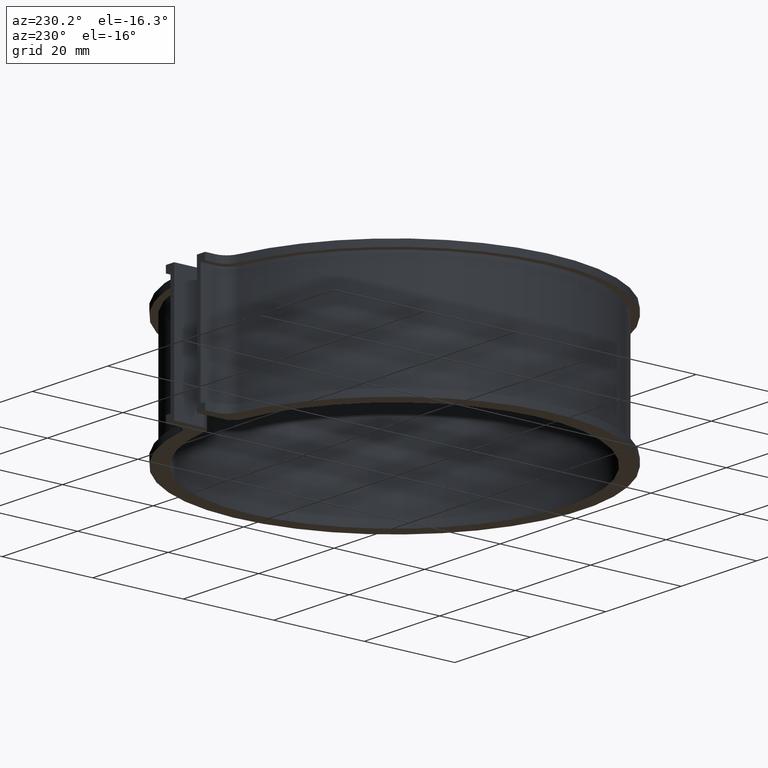
[diagram: clean part render]
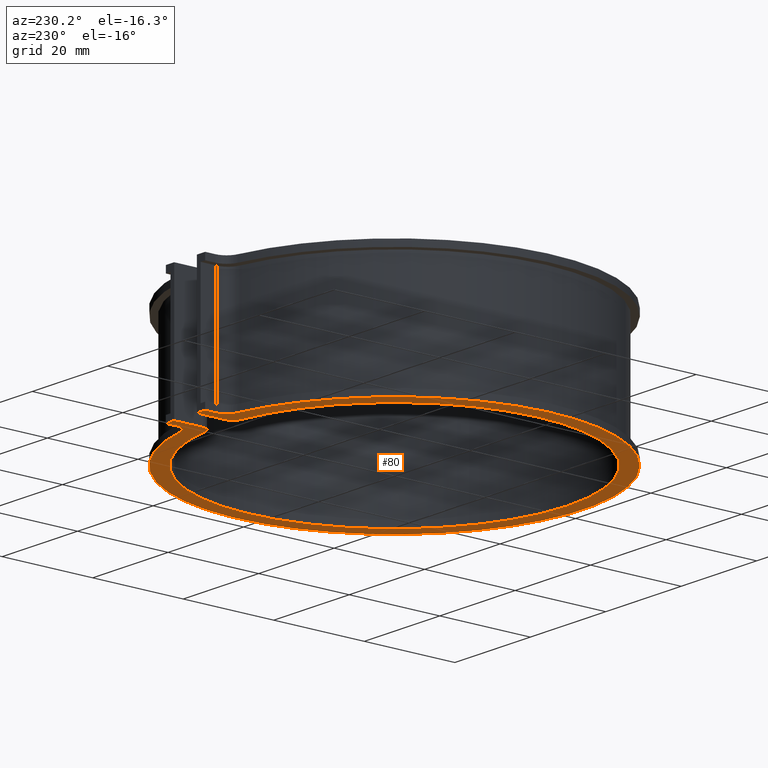
[diagram: same view with one face highlighted and labeled with its STEP entity id]
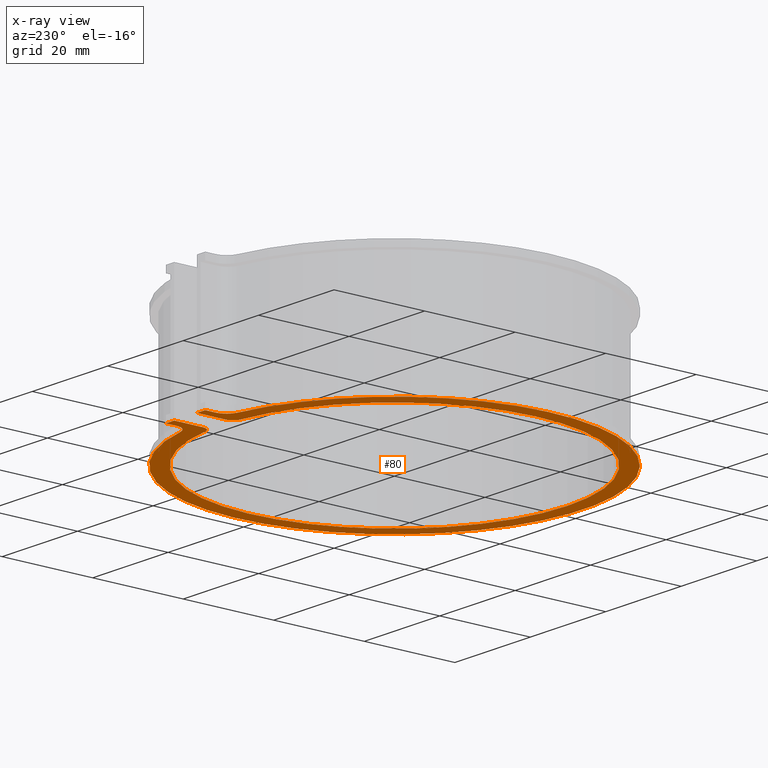
[diagram: x-ray of the same camera — body ghosted, the highlighted face saturated]
A machine part, auxiliary view. The second image highlights one B-rep face of the part: STEP entity #80.
The next image is the same camera in x-ray: the body ghosted, the highlighted face saturated — about 0% of this face is hidden behind the body in this view.
In plain terms, the highlighted planar face has unit normal (0, 0, -1).
Its self-contained STEP definition (entity closure, byte-faithful):
#80 = ADVANCED_FACE( '', ( #112 ), #113, .T. );
#112 = FACE_OUTER_BOUND( '', #164, .T. );
#113 = PLANE( '', #165 );
#164 = EDGE_LOOP( '', ( #253, #254, #255, #256, #257, #258, #259, #260, #261, #262, #263, #264 ) );
#165 = AXIS2_PLACEMENT_3D( '', #265, #266, #267 );
#253 = ORIENTED_EDGE( '', *, *, #455, .F. );
#254 = ORIENTED_EDGE( '', *, *, #456, .T. );
#255 = ORIENTED_EDGE( '', *, *, #432, .F. );
#256 = ORIENTED_EDGE( '', *, *, #457, .T. );
#257 = ORIENTED_EDGE( '', *, *, #458, .F. );
#258 = ORIENTED_EDGE( '', *, *, #459, .F. );
#259 = ORIENTED_EDGE( '', *, *, #460, .F. );
#260 = ORIENTED_EDGE( '', *, *, #461, .F. );
#261 = ORIENTED_EDGE( '', *, *, #462, .F. );
#262 = ORIENTED_EDGE( '', *, *, #463, .F. );
#263 = ORIENTED_EDGE( '', *, *, #444, .F. );
#264 = ORIENTED_EDGE( '', *, *, #438, .F. );
#265 = CARTESIAN_POINT( '', ( 0.000000000000000, 0.000000000000000, -14.0000000000000 ) );
#266 = DIRECTION( '', ( 0.000000000000000, 0.000000000000000, -1.00000000000000 ) );
#267 = DIRECTION( '', ( -1.00000000000000, 6.07153216591882E-017, 0.000000000000000 ) );
#432 = EDGE_CURVE( '', #508, #509, #510, .T. );
#438 = EDGE_CURVE( '', #519, #521, #522, .T. );
#444 = EDGE_CURVE( '', #521, #531, #532, .T. );
#455 = EDGE_CURVE( '', #551, #519, #552, .T. );
#456 = EDGE_CURVE( '', #551, #509, #553, .T. );
#457 = EDGE_CURVE( '', #508, #554, #555, .T. );
#458 = EDGE_CURVE( '', #556, #554, #557, .T. );
#459 = EDGE_CURVE( '', #558, #556, #559, .T. );
#460 = EDGE_CURVE( '', #560, #558, #561, .T. );
#461 = EDGE_CURVE( '', #562, #560, #563, .T. );
#462 = EDGE_CURVE( '', #564, #562, #565, .T. );
#463 = EDGE_CURVE( '', #531, #564, #566, .T. );
#508 = VERTEX_POINT( '', #632 );
#509 = VERTEX_POINT( '', #633 );
#510 = CIRCLE( '', #634, 38.1500000000000 );
#519 = VERTEX_POINT( '', #646 );
#521 = VERTEX_POINT( '', #649 );
#522 = LINE( '', #650, #651 );
#531 = VERTEX_POINT( '', #665 );
#532 = LINE( '', #666, #667 );
#551 = VERTEX_POINT( '', #690 );
#552 = LINE( '', #691, #692 );
#553 = CIRCLE( '', #693, 2.00000000000000 );
#554 = VERTEX_POINT( '', #694 );
#555 = CIRCLE( '', #695, 2.00000000000000 );
#556 = VERTEX_POINT( '', #696 );
#557 = LINE( '', #697, #698 );
#558 = VERTEX_POINT( '', #699 );
#559 = LINE( '', #700, #701 );
#560 = VERTEX_POINT( '', #702 );
#561 = LINE( '', #703, #704 );
#562 = VERTEX_POINT( '', #705 );
#563 = CIRCLE( '', #706, 3.00000000000000 );
#564 = VERTEX_POINT( '', #707 );
#565 = CIRCLE( '', #708, 41.6500000000000 );
#566 = CIRCLE( '', #709, 3.00000000000000 );
#632 = CARTESIAN_POINT( '', ( 4.75093399750934, 37.8530200400352, -14.0000000000000 ) );
#633 = CARTESIAN_POINT( '', ( -4.75093399750936, 37.8530200400352, -14.0000000000000 ) );
#634 = AXIS2_PLACEMENT_3D( '', #792, #793, #794 );
#646 = CARTESIAN_POINT( '', ( -3.00000000000002, 46.1500000000000, -14.0000000000000 ) );
#649 = CARTESIAN_POINT( '', ( -5.20000000000000, 46.1500000000000, -14.0000000000000 ) );
#650 = CARTESIAN_POINT( '', ( -3.00000000000002, 46.1500000000000, -14.0000000000000 ) );
#651 = VECTOR( '', #802, 1000.00000000000 );
#665 = CARTESIAN_POINT( '', ( -5.20000000000000, 43.8905741589239, -14.0000000000000 ) );
#666 = CARTESIAN_POINT( '', ( -5.20000000000000, 46.1500000000000, -14.0000000000000 ) );
#667 = VECTOR( '', #808, 1000.00000000000 );
#690 = CARTESIAN_POINT( '', ( -3.00000000000002, 39.8374509726714, -14.0000000000000 ) );
#691 = CARTESIAN_POINT( '', ( -3.00000000000002, 38.0318616425754, -14.0000000000000 ) );
#692 = VECTOR( '', #831, 1000.00000000000 );
#693 = AXIS2_PLACEMENT_3D( '', #832, #833, #834 );
#694 = CARTESIAN_POINT( '', ( 3.00000000000000, 39.8374509726714, -14.0000000000000 ) );
#695 = AXIS2_PLACEMENT_3D( '', #835, #836, #837 );
#696 = CARTESIAN_POINT( '', ( 3.00000000000003, 46.1500000000000, -14.0000000000000 ) );
#697 = CARTESIAN_POINT( '', ( 3.00000000000000, 46.1500000000000, -14.0000000000000 ) );
#698 = VECTOR( '', #838, 1000.00000000000 );
#699 = CARTESIAN_POINT( '', ( 5.19999999999999, 46.1500000000000, -14.0000000000000 ) );
#700 = CARTESIAN_POINT( '', ( 4.00000000000002, 46.1500000000000, -14.0000000000000 ) );
#701 = VECTOR( '', #839, 1000.00000000000 );
#702 = CARTESIAN_POINT( '', ( 5.19999999999999, 43.8905741589239, -14.0000000000000 ) );
#703 = CARTESIAN_POINT( '', ( 5.19999999999999, 43.8905741589239, -14.0000000000000 ) );
#704 = VECTOR( '', #840, 1000.00000000000 );
#705 = CARTESIAN_POINT( '', ( 7.64904815229557, 40.9415994114038, -14.0000000000000 ) );
#706 = AXIS2_PLACEMENT_3D( '', #841, #842, #843 );
#707 = CARTESIAN_POINT( '', ( -7.64904815229563, 40.9415994114038, -14.0000000000000 ) );
#708 = AXIS2_PLACEMENT_3D( '', #844, #845, #846 );
#709 = AXIS2_PLACEMENT_3D( '', #847, #848, #849 );
#792 = CARTESIAN_POINT( '', ( 0.000000000000000, 0.000000000000000, -14.0000000000000 ) );
#793 = DIRECTION( '', ( 0.000000000000000, 0.000000000000000, -1.00000000000000 ) );
#794 = DIRECTION( '', ( 1.00000000000000, -6.07153216591882E-017, 0.000000000000000 ) );
#802 = DIRECTION( '', ( -1.00000000000000, 0.000000000000000, 0.000000000000000 ) );
#808 = DIRECTION( '', ( -6.50521303491303E-017, -1.00000000000000, 0.000000000000000 ) );
#831 = DIRECTION( '', ( 6.07153216591882E-017, 1.00000000000000, 0.000000000000000 ) );
#832 = CARTESIAN_POINT( '', ( -5.00000000000002, 39.8374509726714, -14.0000000000000 ) );
#833 = DIRECTION( '', ( 0.000000000000000, 0.000000000000000, -1.00000000000000 ) );
#834 = DIRECTION( '', ( -1.00000000000000, 0.000000000000000, 0.000000000000000 ) );
#835 = CARTESIAN_POINT( '', ( 5.00000000000000, 39.8374509726714, -14.0000000000000 ) );
#836 = DIRECTION( '', ( 0.000000000000000, 0.000000000000000, -1.00000000000000 ) );
#837 = DIRECTION( '', ( -1.00000000000000, 0.000000000000000, 0.000000000000000 ) );
#838 = DIRECTION( '', ( -6.07153216591882E-017, -1.00000000000000, 0.000000000000000 ) );
#839 = DIRECTION( '', ( -1.00000000000000, 0.000000000000000, 0.000000000000000 ) );
#840 = DIRECTION( '', ( 6.50521303491303E-017, 1.00000000000000, 0.000000000000000 ) );
#841 = CARTESIAN_POINT( '', ( 8.19999999999999, 43.8905741589239, -14.0000000000000 ) );
#842 = DIRECTION( '', ( 0.000000000000000, 0.000000000000000, -1.00000000000000 ) );
#843 = DIRECTION( '', ( -1.00000000000000, 0.000000000000000, 0.000000000000000 ) );
#844 = CARTESIAN_POINT( '', ( 0.000000000000000, 0.000000000000000, -14.0000000000000 ) );
#845 = DIRECTION( '', ( 0.000000000000000, 0.000000000000000, 1.00000000000000 ) );
#846 = DIRECTION( '', ( 1.00000000000000, 0.000000000000000, 0.000000000000000 ) );
#847 = CARTESIAN_POINT( '', ( -8.20000000000000, 43.8905741589239, -14.0000000000000 ) );
#848 = DIRECTION( '', ( 0.000000000000000, 0.000000000000000, -1.00000000000000 ) );
#849 = DIRECTION( '', ( 1.00000000000000, 0.000000000000000, 0.000000000000000 ) );